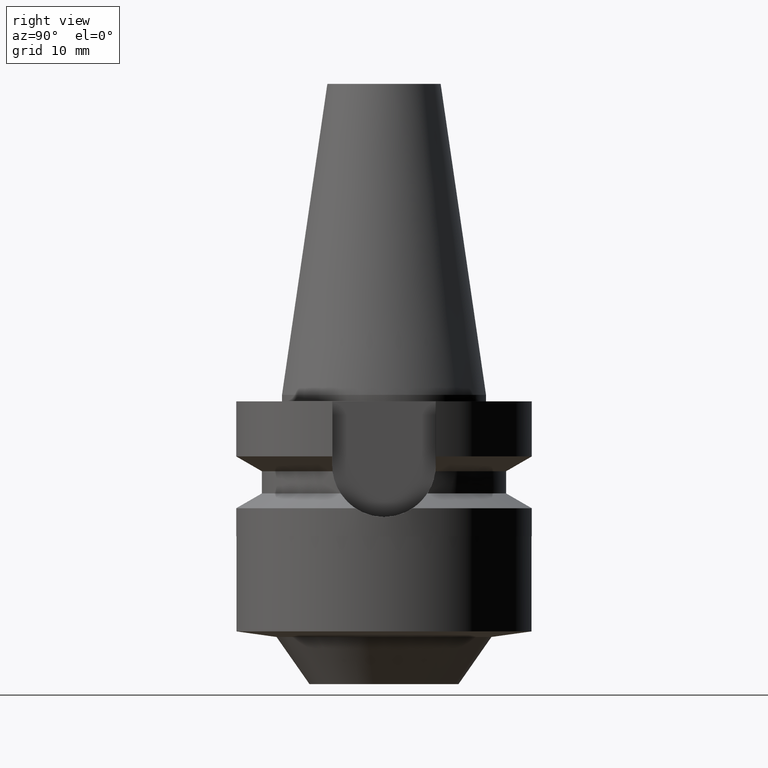
[diagram: clean part render]
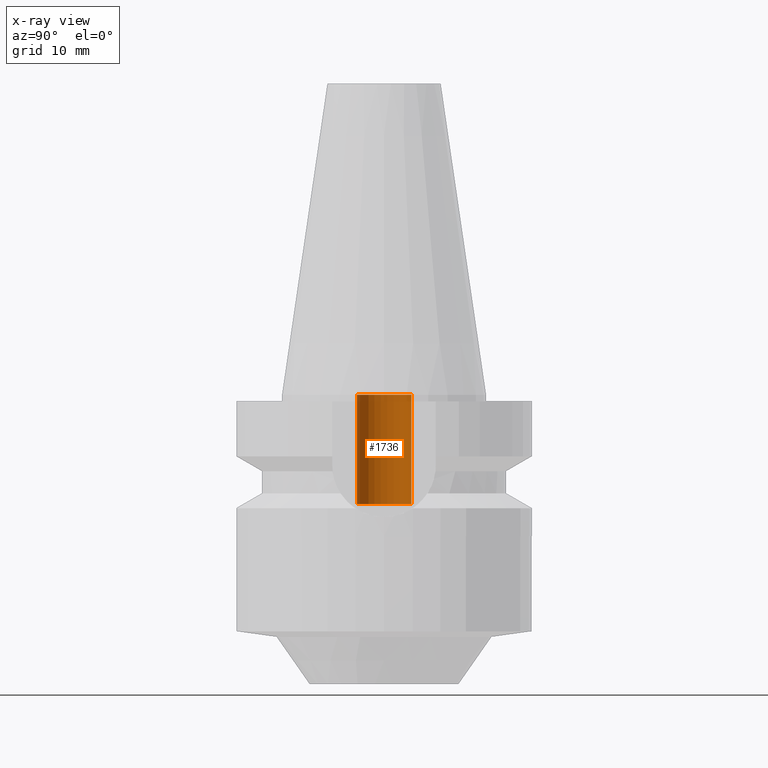
[diagram: x-ray — body ghosted, one internal face saturated and labeled with its STEP entity id]
A machine part, right view, then the same camera in x-ray: the body is ghosted and one INTERNAL B-rep face — a face not visible from any outside direction — is saturated and labeled: STEP entity #1736.
In plain terms, the highlighted cylindrical surface (edge-blend (fillet) strip) has radius 4.25 mm, axis along (0, 0, -1).
Its self-contained STEP definition (entity closure, byte-faithful):
#771=CARTESIAN_POINT('',(0.E0,1.874566855455E-14,-1.7E1));
#772=DIRECTION('',(0.E0,0.E0,-1.E0));
#773=DIRECTION('',(0.E0,-1.E0,0.E0));
#774=AXIS2_PLACEMENT_3D('',#771,#772,#773);
#803=DIRECTION('',(0.E0,0.E0,1.E0));
#804=VECTOR('',#803,1.7E1);
#805=CARTESIAN_POINT('',(0.E0,-4.25E0,-1.7E1));
#806=LINE('',#805,#804);
#810=CARTESIAN_POINT('',(0.E0,1.874566855455E-14,-1.421085471520E-14));
#811=DIRECTION('',(0.E0,0.E0,-1.E0));
#812=DIRECTION('',(0.E0,-1.E0,0.E0));
#813=AXIS2_PLACEMENT_3D('',#810,#811,#812);
#818=DIRECTION('',(0.E0,0.E0,1.E0));
#819=VECTOR('',#818,1.7E1);
#820=CARTESIAN_POINT('',(0.E0,4.25E0,-1.7E1));
#821=LINE('',#820,#819);
#1037=CARTESIAN_POINT('',(0.E0,4.25E0,0.E0));
#1038=VERTEX_POINT('',#1037);
#1039=CARTESIAN_POINT('',(0.E0,-4.25E0,0.E0));
#1040=VERTEX_POINT('',#1039);
#1041=CARTESIAN_POINT('',(0.E0,4.25E0,-1.7E1));
#1042=VERTEX_POINT('',#1041);
#1043=CARTESIAN_POINT('',(0.E0,-4.25E0,-1.7E1));
#1044=VERTEX_POINT('',#1043);
#1722=CARTESIAN_POINT('',(0.E0,1.874566855455E-14,5.307E1));
#1723=DIRECTION('',(0.E0,0.E0,-1.E0));
#1724=DIRECTION('',(0.E0,-1.E0,0.E0));
#1725=AXIS2_PLACEMENT_3D('',#1722,#1723,#1724);
#1726=CYLINDRICAL_SURFACE('',#1725,4.25E0);
#1728=ORIENTED_EDGE('',*,*,#1727,.F.);
#1729=ORIENTED_EDGE('',*,*,#1711,.F.);
#1731=ORIENTED_EDGE('',*,*,#1730,.T.);
#1733=ORIENTED_EDGE('',*,*,#1732,.T.);
#1734=EDGE_LOOP('',(#1728,#1729,#1731,#1733));
#1735=FACE_OUTER_BOUND('',#1734,.F.);
#775=CIRCLE('',#774,4.25E0);
#814=CIRCLE('',#813,4.25E0);
#1711=EDGE_CURVE('',#1044,#1042,#775,.T.);
#1727=EDGE_CURVE('',#1042,#1038,#821,.T.);
#1730=EDGE_CURVE('',#1044,#1040,#806,.T.);
#1732=EDGE_CURVE('',#1040,#1038,#814,.T.);
#1736=ADVANCED_FACE('',(#1735),#1726,.F.);